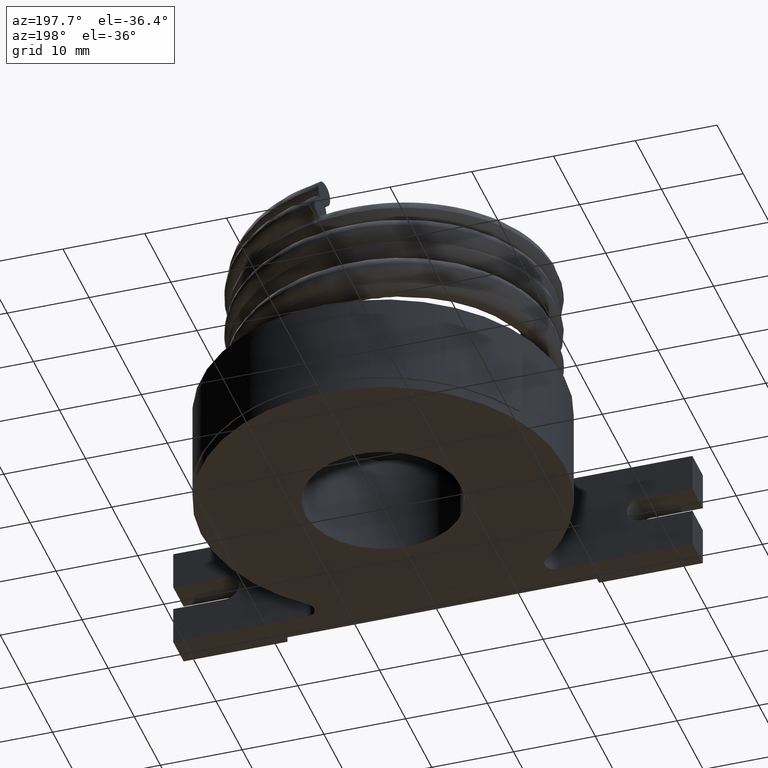
[diagram: clean part render]
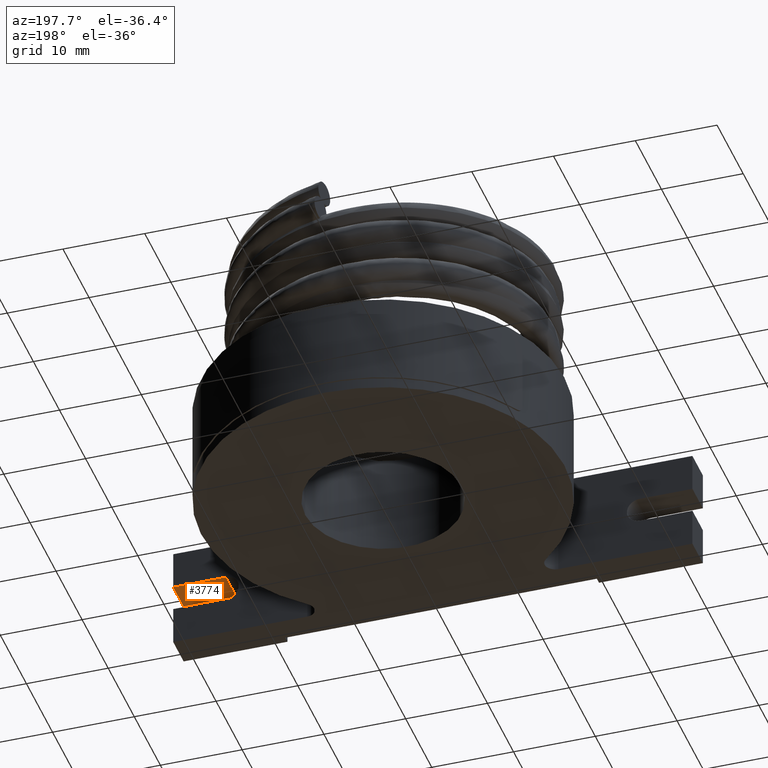
[diagram: same view with one face highlighted and labeled with its STEP entity id]
A machine part, auxiliary view. The second image highlights one B-rep face of the part: STEP entity #3774.
In plain terms, the highlighted planar face has unit normal (0, 0, 1).
Its self-contained STEP definition (entity closure, byte-faithful):
#3622=CARTESIAN_POINT('',(25.320000000000004,-23.055,7.935));
#3623=VERTEX_POINT('',#3622);
#3631=CARTESIAN_POINT('',(31.750000000000004,-23.055,7.935));
#3632=VERTEX_POINT('',#3631);
#3633=CARTESIAN_POINT('',(25.320000000000004,-23.055,7.935));
#3634=DIRECTION('',(1.0,0.0,0.0));
#3635=VECTOR('',#3634,6.43);
#3636=LINE('',#3633,#3635);
#3637=EDGE_CURVE('',#3623,#3632,#3636,.T.);
#3708=CARTESIAN_POINT('',(31.750000000000004,-19.055,7.935));
#3709=VERTEX_POINT('',#3708);
#3718=CARTESIAN_POINT('',(31.750000000000004,-23.055,7.935));
#3719=DIRECTION('',(0.0,1.0,0.0));
#3720=VECTOR('',#3719,4.0);
#3721=LINE('',#3718,#3720);
#3722=EDGE_CURVE('',#3632,#3709,#3721,.T.);
#3751=CARTESIAN_POINT('',(24.998500000000003,-23.254999999999999,7.935));
#3752=DIRECTION('',(0.0,0.0,1.0));
#3753=DIRECTION('',(1.0,0.0,0.0));
#3754=AXIS2_PLACEMENT_3D('',#3751,#3752,#3753);
#3755=PLANE('',#3754);
#3756=CARTESIAN_POINT('',(25.320000000000004,-19.055,7.935));
#3757=VERTEX_POINT('',#3756);
#3758=CARTESIAN_POINT('',(31.750000000000004,-19.055,7.935));
#3759=DIRECTION('',(-1.0,0.0,0.0));
#3760=VECTOR('',#3759,6.429999999999996);
#3761=LINE('',#3758,#3760);
#3762=EDGE_CURVE('',#3709,#3757,#3761,.T.);
#3763=ORIENTED_EDGE('',*,*,#3762,.F.);
#3764=ORIENTED_EDGE('',*,*,#3722,.F.);
#3765=ORIENTED_EDGE('',*,*,#3637,.F.);
#3766=CARTESIAN_POINT('',(25.32,-19.055,7.935));
#3767=DIRECTION('',(0.0,-1.0,0.0));
#3768=VECTOR('',#3767,4.0);
#3769=LINE('',#3766,#3768);
#3770=EDGE_CURVE('',#3757,#3623,#3769,.T.);
#3771=ORIENTED_EDGE('',*,*,#3770,.F.);
#3772=EDGE_LOOP('',(#3763,#3764,#3765,#3771));
#3773=FACE_OUTER_BOUND('',#3772,.T.);
#3774=ADVANCED_FACE('',(#3773),#3755,.F.);